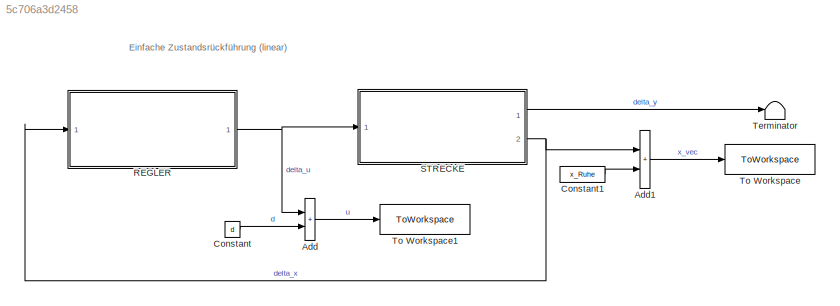
MODEL slx_5c706a3d2458
KIND model
CONFIG AbsTol = auto
CONFIG EnableMultiTasking = off
CONFIG FixedStep = 1/1e4
CONFIG MaxStep = auto
CONFIG MinStep = auto
CONFIG RelTol = 1e-3
CONFIG SampleTimeConstraint = Unconstrained
CONFIG SolverName = FixedStepAuto
CONFIG StartTime = 0.0
CONFIG StopTime = 10
BLOCK [Sum] Add
  IconShape = rectangular
  Ports = [2, 1]
BLOCK [Sum] Add1
  IconShape = rectangular
  Ports = [2, 1]
BLOCK [Constant] Constant
  Value = d
BLOCK [Constant] Constant1
  Value = x_Ruhe
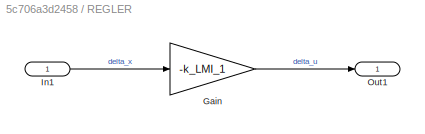
BLOCK [SubSystem] REGLER
  Ports = [1, 1]
  RequestExecContextInheritance = off
BLOCK [Gain] REGLER/Gain
  Gain = -k_LMI_1
  Multiplication = Matrix(K*u) (u vector)
BLOCK [Inport] REGLER/In1
  IconDisplay = Signal name
BLOCK [Outport] REGLER/Out1
  IconDisplay = Signal name
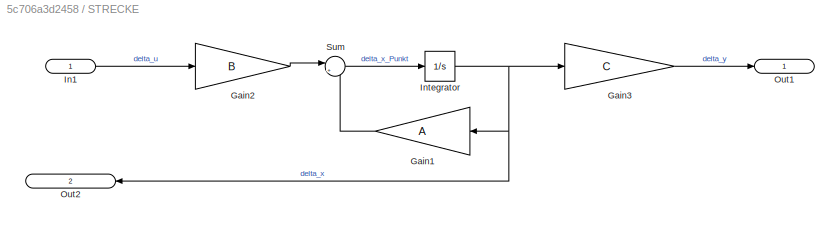
BLOCK [SubSystem] STRECKE
  Ports = [1, 2]
  RequestExecContextInheritance = off
BLOCK [Gain] STRECKE/Gain1
  Gain = A
  Multiplication = Matrix(K*u) (u vector)
  NameLocation = top
BLOCK [Gain] STRECKE/Gain2
  Gain = B
  Multiplication = Matrix(K*u) (u vector)
BLOCK [Gain] STRECKE/Gain3
  Gain = C
  Multiplication = Matrix(K*u) (u vector)
BLOCK [Inport] STRECKE/In1
  IconDisplay = Signal name
BLOCK [Integrator] STRECKE/Integrator
  InitialCondition = [-10; 0]
  Ports = [1, 1]
BLOCK [Outport] STRECKE/Out1
  IconDisplay = Signal name
BLOCK [Outport] STRECKE/Out2
  IconDisplay = Signal name
  NameLocation = top
  Port = 2
BLOCK [Sum] STRECKE/Sum
  Inputs = |++
  Ports = [2, 1]
BLOCK [Terminator] Terminator
BLOCK [ToWorkspace] To Workspace
  FixptAsFi = on
  MaxDataPoints = inf
  Ports = [1]
  SampleTime = -1
  SaveFormat = Timeseries
  VariableName = x_vec
BLOCK [ToWorkspace] To Workspace1
  FixptAsFi = on
  MaxDataPoints = inf
  Ports = [1]
  SampleTime = -1
  SaveFormat = Timeseries
  VariableName = u
ANNOTATION (root): Einfache Zustandsrückführung (linear)
LINE Add1:1 -> To Workspace:1
LINE Add:1 -> To Workspace1:1
LINE Constant1:1 -> Add1:2
LINE Constant:1 -> Add:2
LINE REGLER/Gain:1 -> REGLER/Out1:1
LINE REGLER/In1:1 -> REGLER/Gain:1
NET REGLER:1 -> Add:1, STRECKE:1
LINE STRECKE/Gain1:1 -> STRECKE/Sum:2
LINE STRECKE/Gain2:1 -> STRECKE/Sum:1
LINE STRECKE/Gain3:1 -> STRECKE/Out1:1
LINE STRECKE/In1:1 -> STRECKE/Gain2:1
NET STRECKE/Integrator:1 -> STRECKE/Gain1:1, STRECKE/Gain3:1, STRECKE/Out2:1
LINE STRECKE/Sum:1 -> STRECKE/Integrator:1
LINE STRECKE:1 -> Terminator:1
NET STRECKE:2 -> Add1:1, REGLER:1
note: NET lines group one-source signal fan-out (src -> all destinations, sorted); 1:1 wires keep LINE
